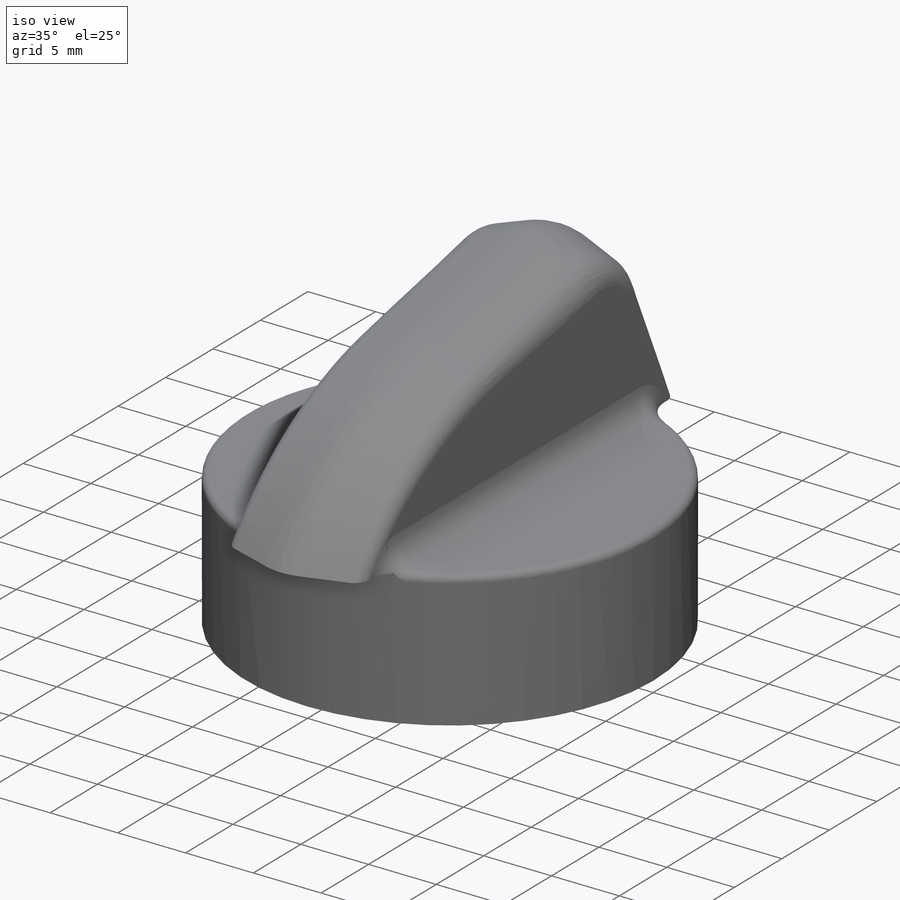
[diagram: iso view]
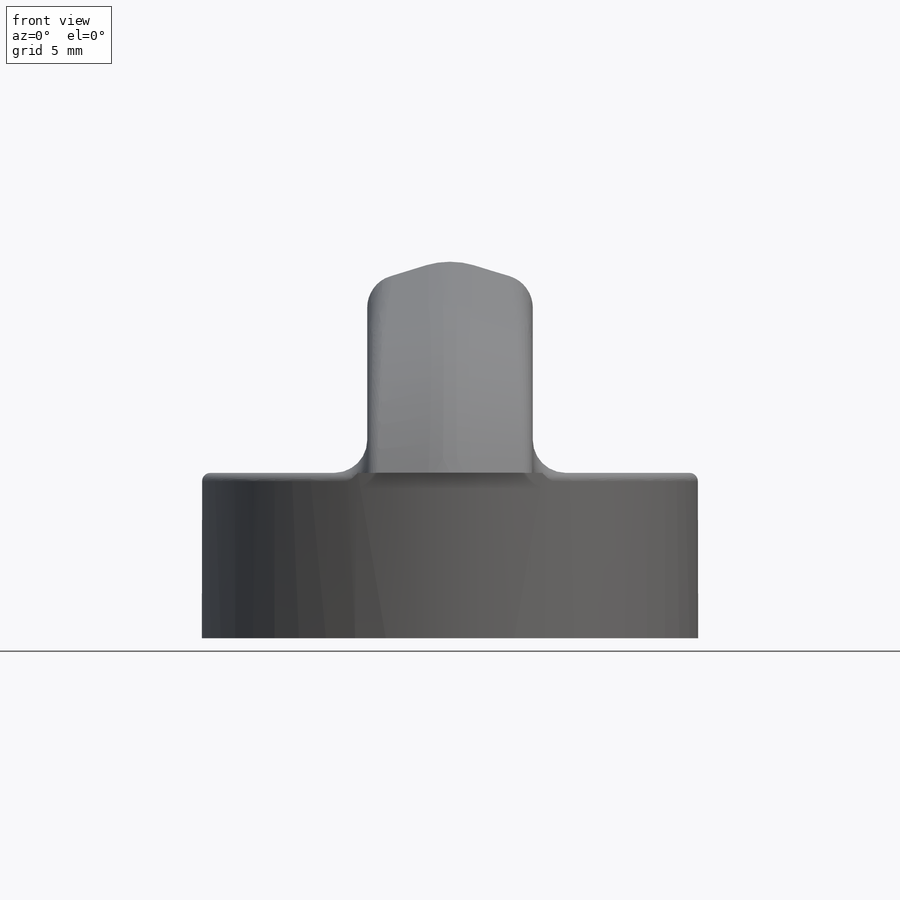
[diagram: front view]
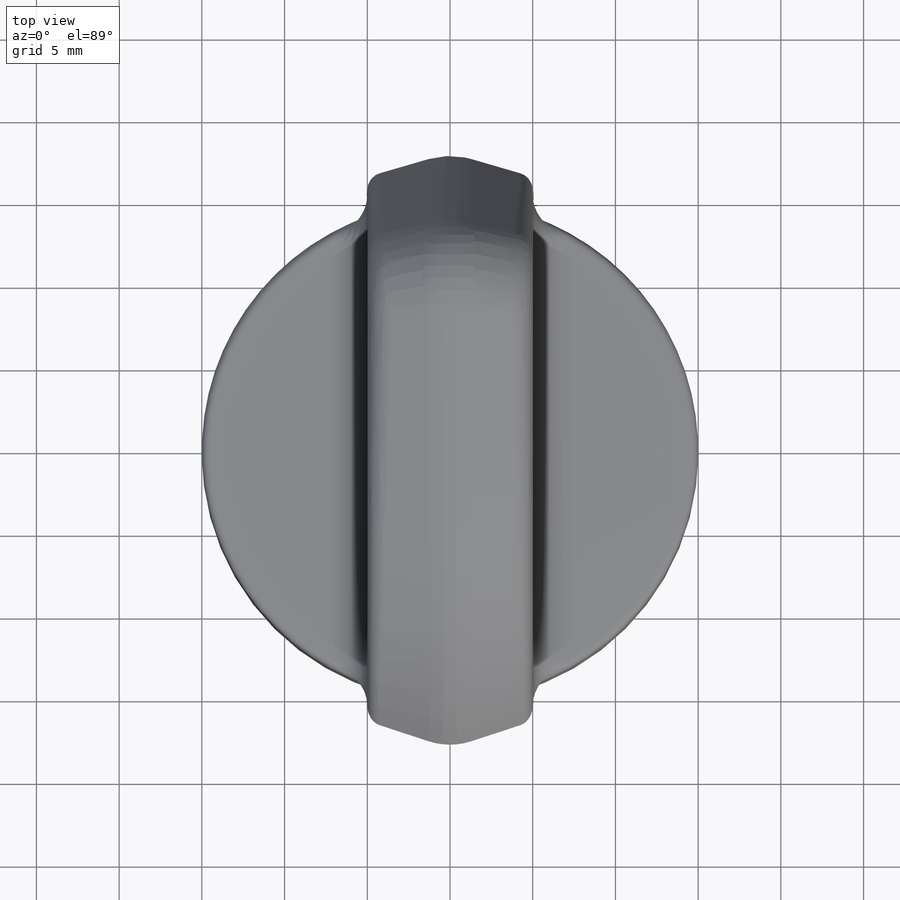
[diagram: top view]
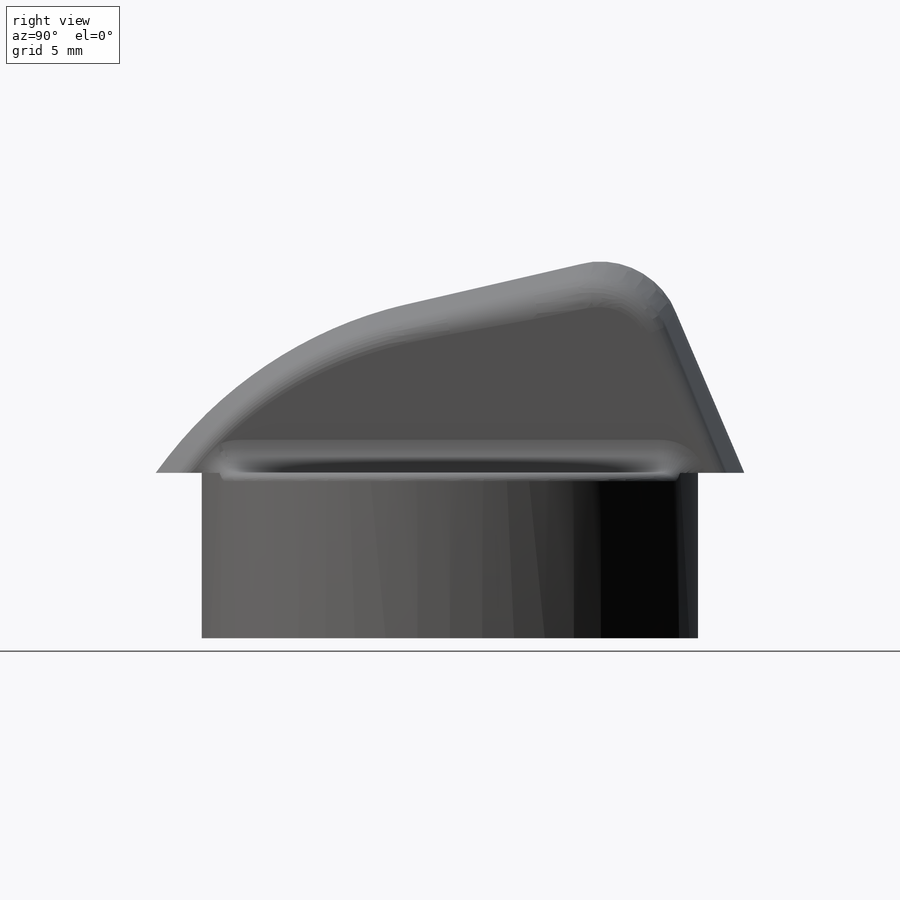
[diagram: right view]
SOLIDWORKS PART (.sldprt)
format: sldprt  version: not decoded by parser v0  size: 406,528 bytes
history: native  units: mm
features: fillet x5, sketch x2, extrude x2, material x1, mirror x1 (+16 scaffold rows collapsed)
feature tree (27):
  scaffold x16  (default folders/planes/origin — collapsed)
  material  "Material <sin especificar>"
  sketch  "Croquis1"  dims[D1=15.0mm]
  extrude  "Saliente-Extruir1"  Depth=10mm
  sketch  "Croquis2"  dims[c1.D1=18.0mm c1.D2=18.0mm c1.D3=~10.006001mm c2.D3=100.0deg c2.D4=15.0mm c2.D5=25.0mm c2.D6=10.0mm c3.D3=25.0mm c4.D3=100.0deg c5.D3=~12.246393mm c6.D3=100.0deg]
  extrude  "Saliente-Extruir2"  Depth=5mm
  fillet  "Redondeo1"  [1 undecoded]
  fillet  "Redondeo2"  Radius=5mm
  fillet  "Redondeo3"  Radius=0.5mm
  fillet  "Redondeo4"  Radius=2mm
  mirror  "Simetría3"
  fillet  "Redondeo5"  Radius=5mm
decode coverage: 8 of 10 modeling features carry decoded parameters
note: ~ marks probable driven/reference dimensions
note: 1 parameter value undecoded
note: suppression state not decoded; provenance and decode notes live in map.json
